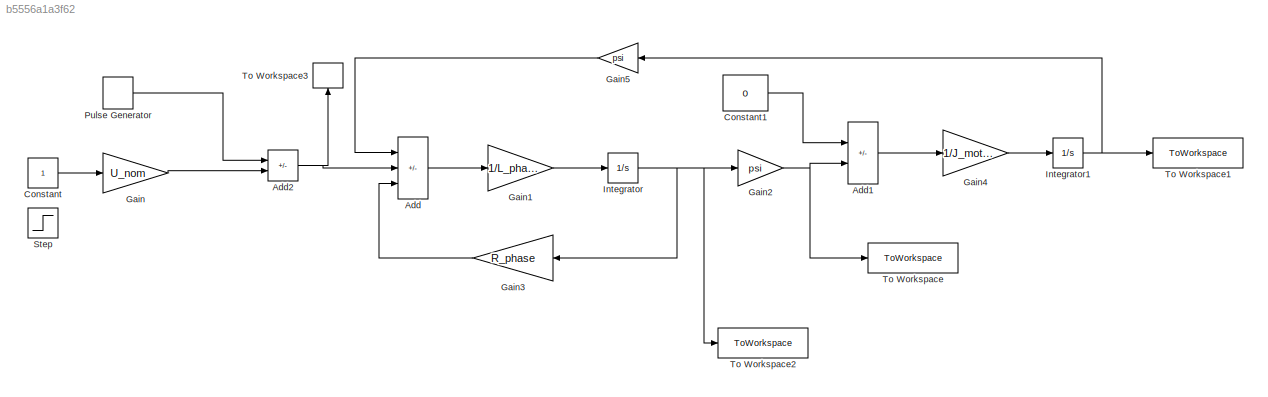
MODEL slx_b5556a1a3f62
KIND model
CONFIG AbsTol = auto
CONFIG EnableMultiTasking = off
CONFIG FixedStep = 0.0001
CONFIG MaxStep = auto
CONFIG MinStep = auto
CONFIG RelTol = 1e-3
CONFIG SampleTimeConstraint = Unconstrained
CONFIG SolverName = FixedStepAuto
CONFIG StartTime = 0.0
CONFIG StopTime = 10
BLOCK [Sum] Add
  IconShape = rectangular
  Inputs = -+-
  Ports = [3, 1]
BLOCK [Sum] Add1
  IconShape = rectangular
  Inputs = -+
  Ports = [2, 1]
BLOCK [Sum] Add2
  IconShape = rectangular
  Inputs = +-
  Ports = [2, 1]
BLOCK [Constant] Constant
  SampleTime = -1
BLOCK [Constant] Constant1
  Value = 0
BLOCK [Gain] Gain
  Gain = U_nom
BLOCK [Gain] Gain1
  Gain = 1/L_phase
BLOCK [Gain] Gain2
  Gain = psi
BLOCK [Gain] Gain3
  Gain = R_phase
  NameLocation = top
BLOCK [Gain] Gain4
  Gain = 1/J_motor
BLOCK [Gain] Gain5
  Gain = psi
  NameLocation = top
BLOCK [Integrator] Integrator
  Ports = [1, 1]
BLOCK [Integrator] Integrator1
  Ports = [1, 1]
BLOCK [DiscretePulseGenerator] Pulse Generator
  Amplitude = 2*U_nom
  Ports = [0, 1]
  PulseType = Time based
  PulseWidth = 50
BLOCK [Step] Step
  Before = 0.5
  SampleTime = 0
BLOCK [ToWorkspace] To Workspace
  FixptAsFi = on
  MaxDataPoints = inf
  Ports = [1]
  SampleTime = -1
  SaveFormat = Timeseries
  VariableName = torque
BLOCK [ToWorkspace] To Workspace1
  FixptAsFi = on
  MaxDataPoints = inf
  Ports = [1]
  SampleTime = -1
  SaveFormat = Timeseries
  VariableName = wmotor
BLOCK [ToWorkspace] To Workspace2
  FixptAsFi = on
  MaxDataPoints = inf
  Ports = [1]
  SampleTime = -1
  SaveFormat = Timeseries
  VariableName = i
BLOCK [ToWorkspace] To Workspace3
  FixptAsFi = on
  MaxDataPoints = inf
  NameLocation = right
  Ports = [1]
  SampleTime = -1
  SaveFormat = Timeseries
  VariableName = x1
LINE Add1:1 -> Gain4:1
NET Add2:1 -> Add:2, To Workspace3:1
LINE Add:1 -> Gain1:1
LINE Constant1:1 -> Add1:1
LINE Constant:1 -> Gain:1
LINE Gain1:1 -> Integrator:1
NET Gain2:1 -> Add1:2, To Workspace:1
LINE Gain3:1 -> Add:3
LINE Gain4:1 -> Integrator1:1
LINE Gain5:1 -> Add:1
LINE Gain:1 -> Add2:2
NET Integrator1:1 -> Gain5:1, To Workspace1:1
NET Integrator:1 -> Gain2:1, Gain3:1, To Workspace2:1
LINE Pulse Generator:1 -> Add2:1
note: NET lines group one-source signal fan-out (src -> all destinations, sorted); 1:1 wires keep LINE
